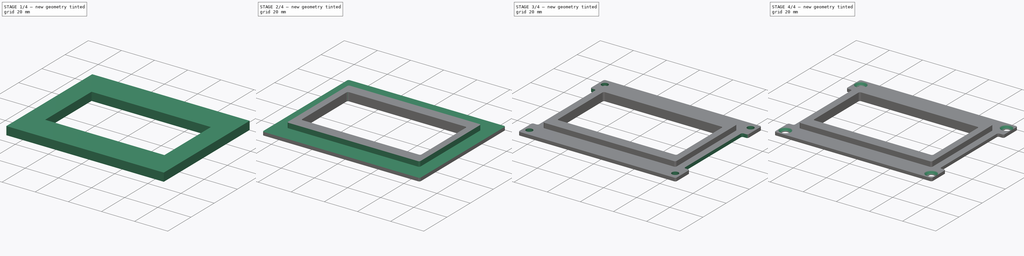
[diagram: build sequence overview — one tinted view per stage of 4, left to right]
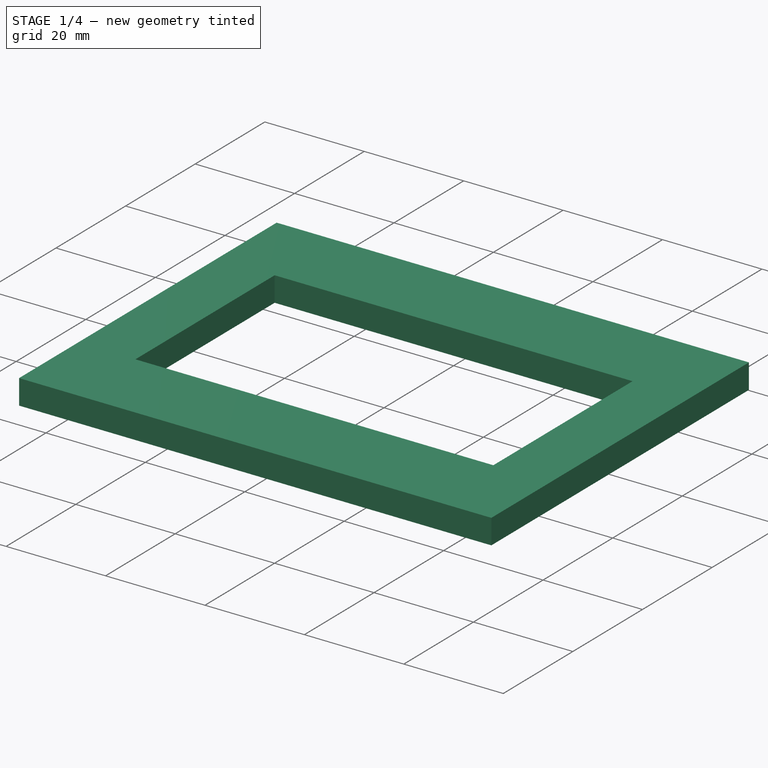
[diagram: stage 1 of 4 — iso view after this stage's code; geometry added in this stage tinted green]
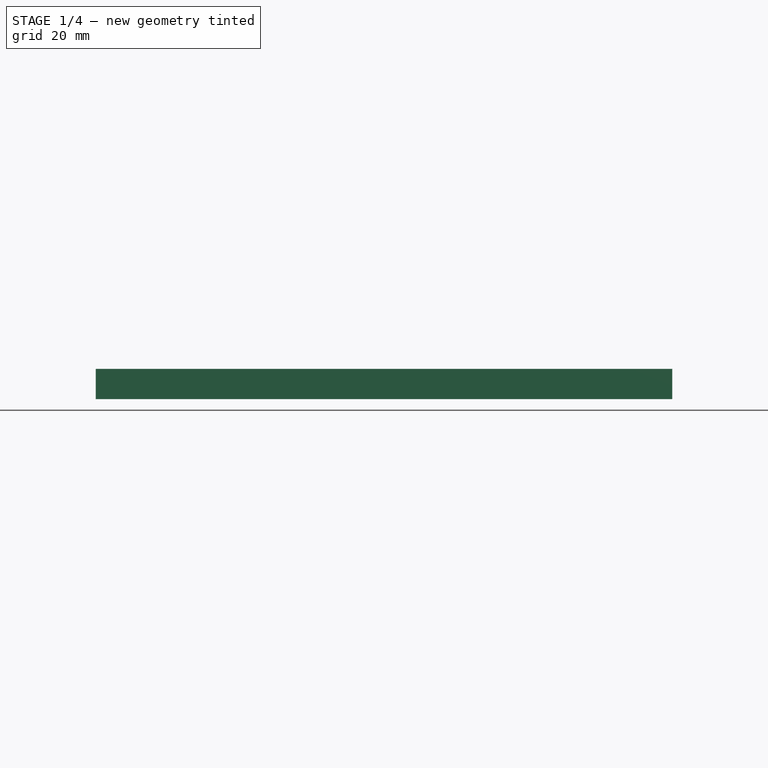
[diagram: stage 1 of 4 — front view after this stage's code; geometry added in this stage tinted green]
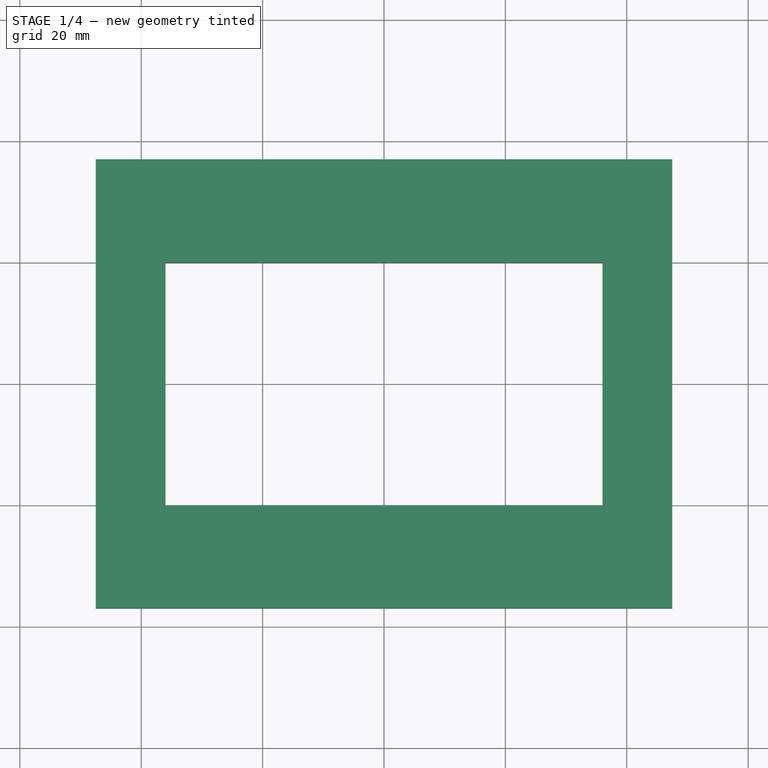
[diagram: stage 1 of 4 — top view after this stage's code; geometry added in this stage tinted green]
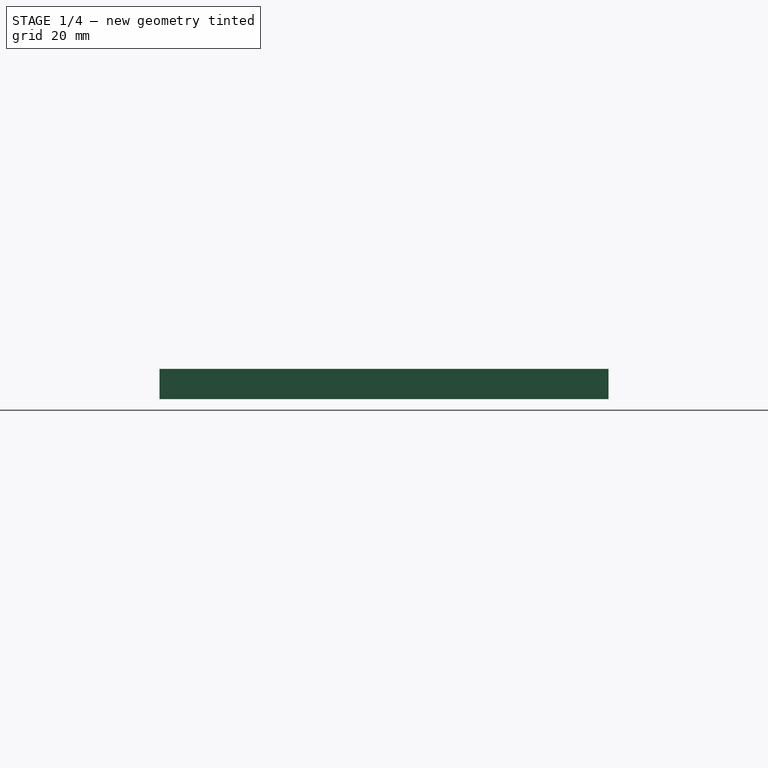
[diagram: stage 1 of 4 — right view after this stage's code; geometry added in this stage tinted green]
FCSTD DOCUMENT  (FreeCAD 0.17R13662 (Git))
Label: mini_lcd_bezel_v0.1
License: All rights reserved
LicenseURL: http://en.wikipedia.org/wiki/All_rights_reserved
objects: Drawing::FeatureViewPython×7, Sketcher::SketchObject×5, PartDesign::Pocket×5, PartDesign::Fillet×3, PartDesign::Pad×1, PartDesign::Chamfer×1, PartDesign::Body×1, Drawing::FeatureViewPart×1, Drawing::FeaturePage×1, App::Part×1
note: 22 computed .brp shape members not serialized (recipe doc carries the construction recipe); baked Part::Feature solids carry a one-line shape summary decoded from their .brp

FEATURE [Sketcher::SketchObject] Sketch
  MapMode = 5
  Support = -> [XY_Plane001]
  sketch-geometry (4):
    g0: LineSegment StartX=-47.5 StartY=37 StartZ=0 EndX=47.5 EndY=37 EndZ=0
    g1: LineSegment StartX=47.5 StartY=37 StartZ=0 EndX=47.5 EndY=-37 EndZ=0
    g2: LineSegment StartX=47.5 StartY=-37 StartZ=0 EndX=-47.5 EndY=-37 EndZ=0
    g3: LineSegment StartX=-47.5 StartY=-37 StartZ=0 EndX=-47.5 EndY=37 EndZ=0
  constraints (12):
    c: Coincident(g0,g1)
    c: Coincident(g1,g2)
    c: Coincident(g2,g3)
    c: Coincident(g3,g0)
    c: Horizontal(g0)
    c: Horizontal(g2)
    c: Vertical(g1)
    c: Vertical(g3)
    c: Distance(g0) = 95
    c: Distance(g1) = 74
    c: DistanceY(g-1,g1) = -37
    c: DistanceX(g-1,g0) = 47.5
FEATURE [PartDesign::Pad] Pad
  Length = 5
  Length2 = 100
  Profile = -> Sketch
  Type = 0
FEATURE [Sketcher::SketchObject] Sketch002
  MapMode = 5
  Placement = pos=(0,0,5) rot=(0,0,1;0rad)
  Support = -> [Pad]
  sketch-geometry (4):
    g0: LineSegment StartX=-36 StartY=20 StartZ=0 EndX=36 EndY=20 EndZ=0
    g1: LineSegment StartX=36 StartY=20 StartZ=0 EndX=36 EndY=-20 EndZ=0
    g2: LineSegment StartX=36 StartY=-20 StartZ=0 EndX=-36 EndY=-20 EndZ=0
    g3: LineSegment StartX=-36 StartY=-20 StartZ=0 EndX=-36 EndY=20 EndZ=0
  constraints (12):
    c: Coincident(g0,g1)
    c: Coincident(g1,g2)
    c: Coincident(g2,g3)
    c: Coincident(g3,g0)
    c: Horizontal(g0)
    c: Horizontal(g2)
    c: Vertical(g1)
    c: Vertical(g3)
    c: DistanceX(g0) = 72
    c: DistanceY(g1) = -40
    c: DistanceY(g-1,g0) = 20
    c: DistanceX(g-1,g0) = 36
FEATURE [PartDesign::Pocket] Pocket
  BaseFeature = -> Pad
  Length = 5
  Length2 = 100
  Profile = -> Sketch002
  Type = 1
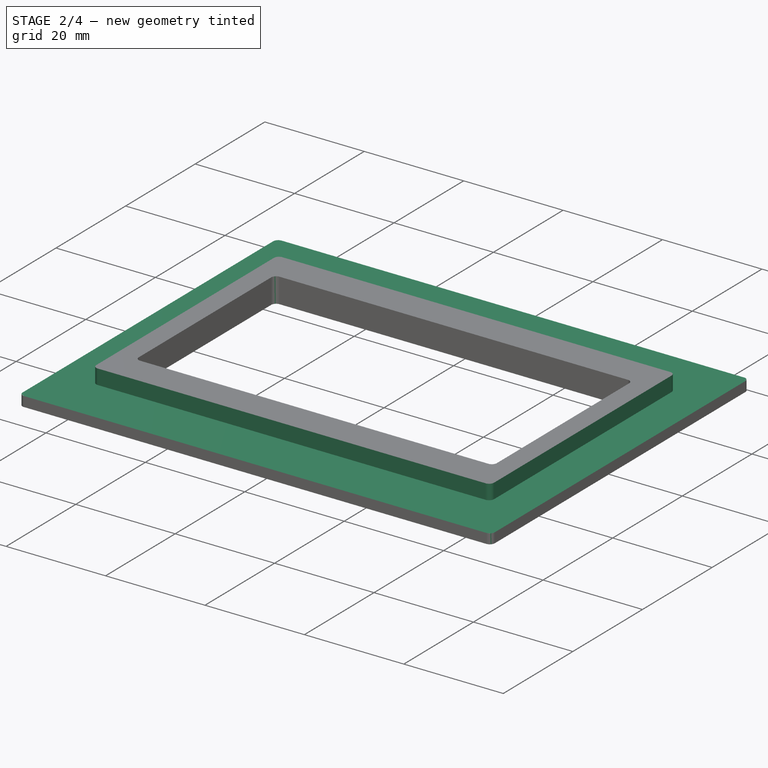
[diagram: stage 2 of 4 — iso view after this stage's code; geometry added in this stage tinted green]
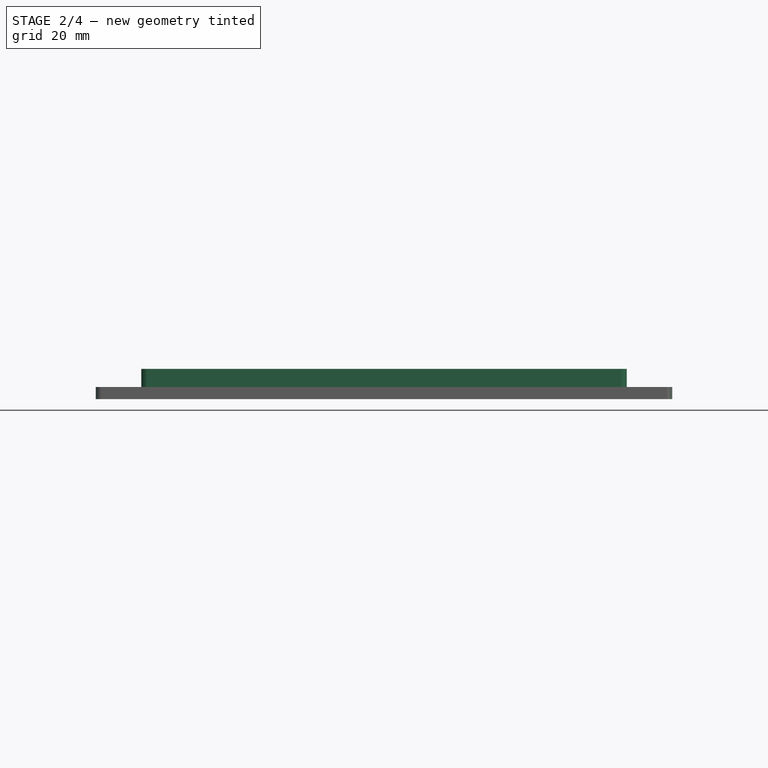
[diagram: stage 2 of 4 — front view after this stage's code; geometry added in this stage tinted green]
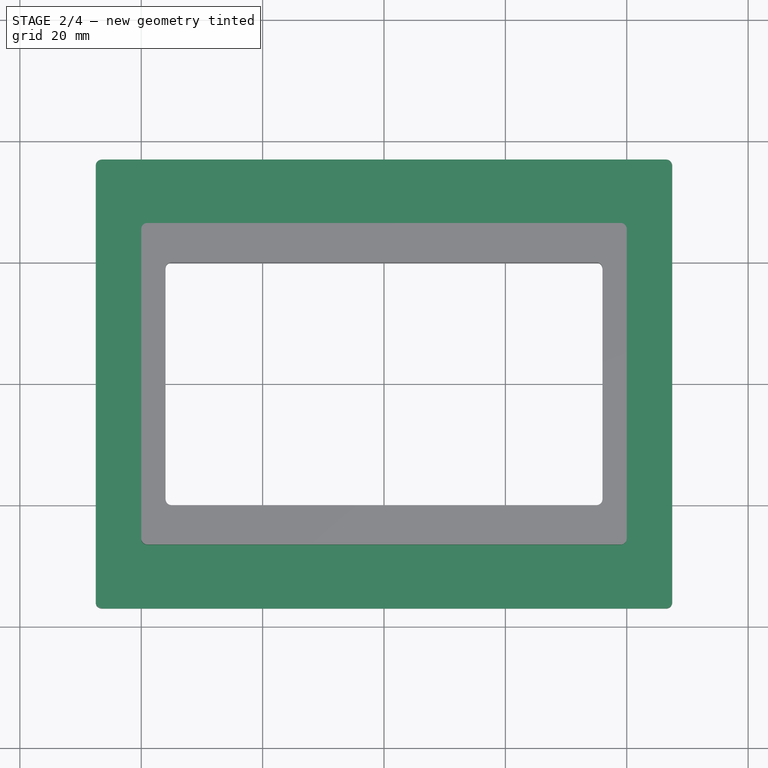
[diagram: stage 2 of 4 — top view after this stage's code; geometry added in this stage tinted green]
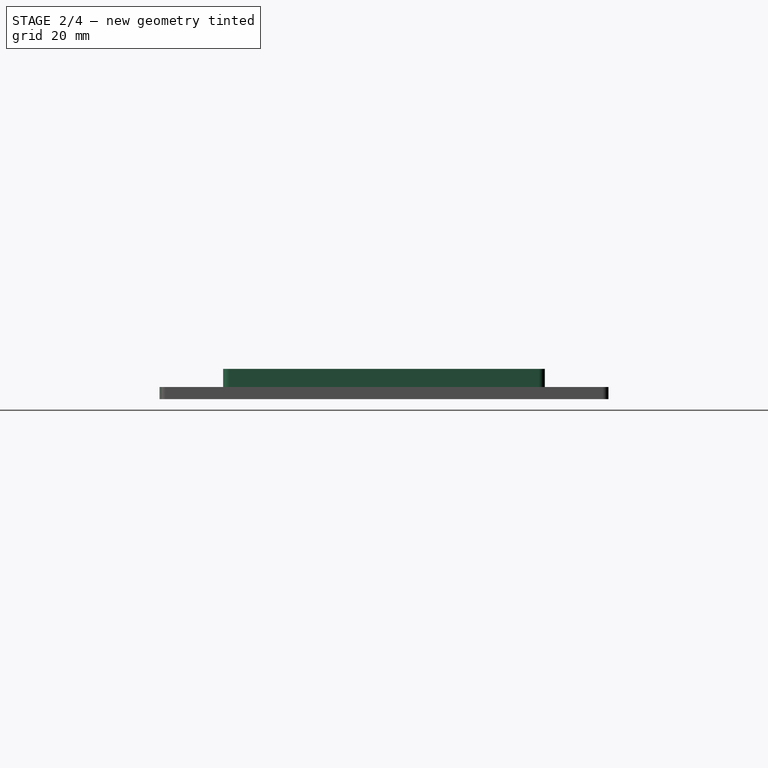
[diagram: stage 2 of 4 — right view after this stage's code; geometry added in this stage tinted green]
FEATURE [Sketcher::SketchObject] Sketch004
  MapMode = 5
  Placement = pos=(0,0,5) rot=(0,0,1;0rad)
  Support = -> [Pocket]
  sketch-geometry (8):
    g0: LineSegment StartX=-40 StartY=26.5 StartZ=0 EndX=40 EndY=26.5 EndZ=0
    g1: LineSegment StartX=40 StartY=26.5 StartZ=0 EndX=40 EndY=-26.5 EndZ=0
    g2: LineSegment StartX=40 StartY=-26.5 StartZ=0 EndX=-40 EndY=-26.5 EndZ=0
    g3: LineSegment StartX=-40 StartY=-26.5 StartZ=0 EndX=-40 EndY=26.5 EndZ=0
    g4: LineSegment StartX=-60.6887 StartY=46.8278 StartZ=0 EndX=56.9732 EndY=46.8278 EndZ=0
    g5: LineSegment StartX=56.9732 StartY=46.8278 StartZ=0 EndX=56.9732 EndY=-45.6053 EndZ=0
    g6: LineSegment StartX=56.9732 StartY=-45.6053 StartZ=0 EndX=-60.6887 EndY=-45.6053 EndZ=0
    g7: LineSegment StartX=-60.6887 StartY=-45.6053 StartZ=0 EndX=-60.6887 EndY=46.8278 EndZ=0
  constraints (20):
    c: Coincident(g0,g1)
    c: Coincident(g1,g2)
    c: Coincident(g2,g3)
    c: Coincident(g3,g0)
    c: Horizontal(g0)
    c: Horizontal(g2)
    c: Vertical(g1)
    c: Vertical(g3)
    c: DistanceX(g0) = 80
    c: DistanceX(g-1,g0) = 40
    c: DistanceY(g1) = -53
    c: DistanceY(g-1,g0) = 26.5
    c: Coincident(g4,g5)
    c: Coincident(g5,g6)
    c: Coincident(g6,g7)
    c: Coincident(g7,g4)
    c: Horizontal(g4)
    c: Horizontal(g6)
    c: Vertical(g5)
    c: Vertical(g7)
FEATURE [PartDesign::Pocket] Pocket001
  BaseFeature = -> Pocket
  Length = 3
  Length2 = 100
  Profile = -> Sketch004
  Type = 0
FEATURE [PartDesign::Fillet] Fillet
  Base = -> Pocket001 [Edge23,Edge22,Edge27,Edge25]
  BaseFeature = -> Pocket001
  Radius = 1
FEATURE [PartDesign::Fillet] Fillet001
  Base = -> Fillet [Edge47,Edge29,Edge34,Edge48,Edge33,Edge45,Edge46,Edge31]
  BaseFeature = -> Fillet
  Radius = 1
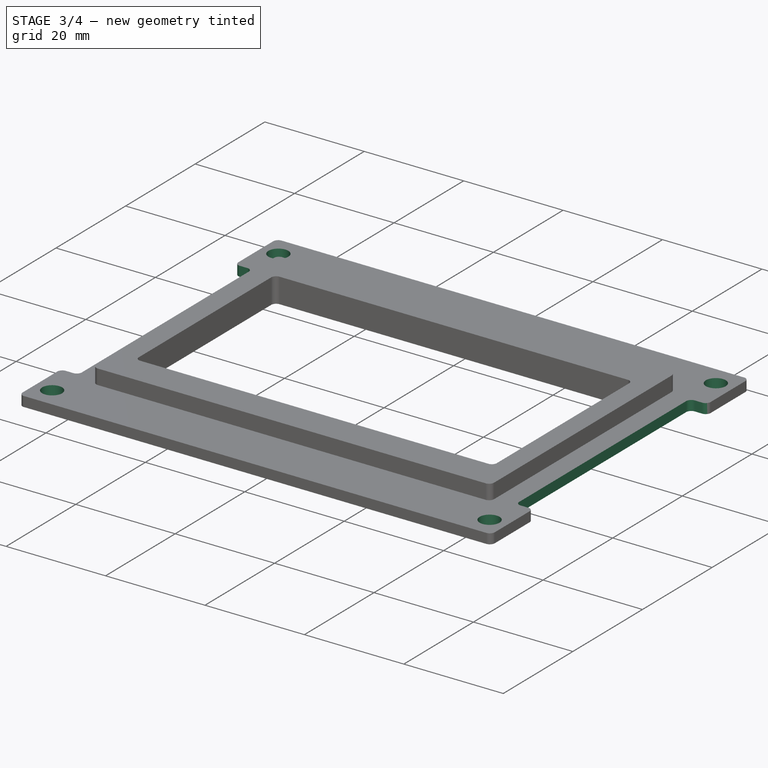
[diagram: stage 3 of 4 — iso view after this stage's code; geometry added in this stage tinted green]
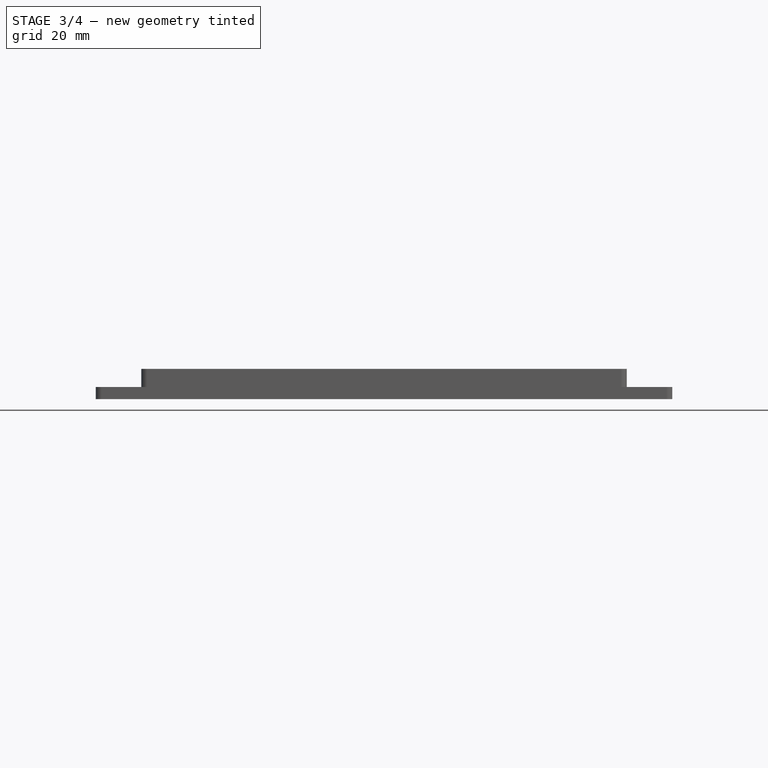
[diagram: stage 3 of 4 — front view after this stage's code; geometry added in this stage tinted green]
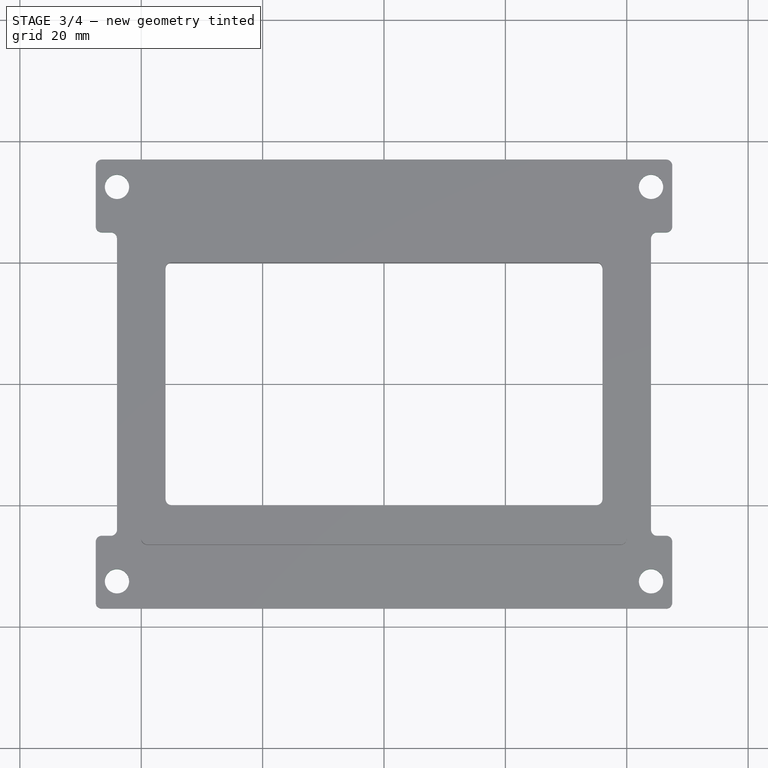
[diagram: stage 3 of 4 — top view after this stage's code; geometry added in this stage tinted green]
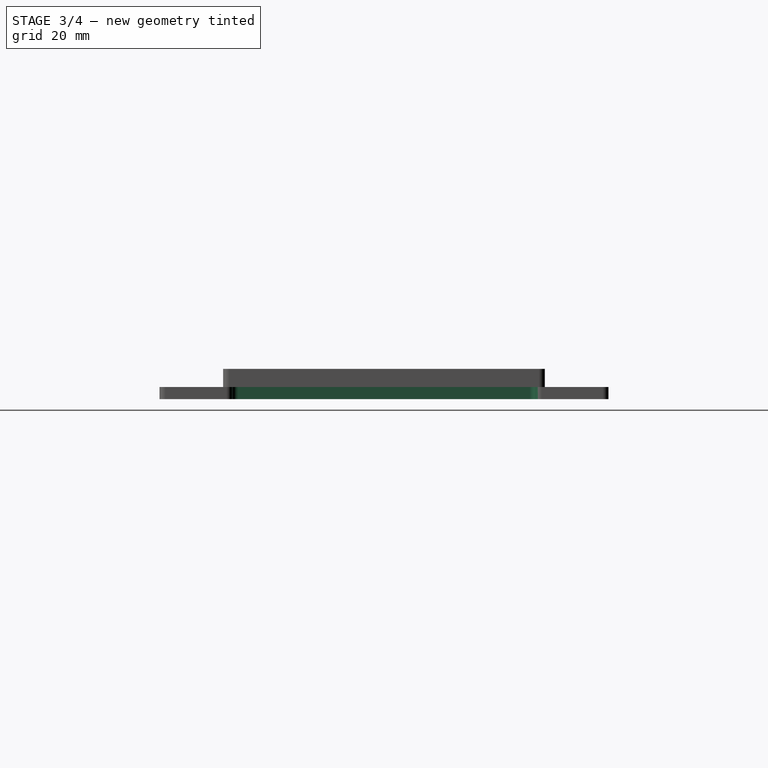
[diagram: stage 3 of 4 — right view after this stage's code; geometry added in this stage tinted green]
FEATURE [Sketcher::SketchObject] Sketch005
  MapMode = 5
  Placement = pos=(0,0,2) rot=(0,0,1;0rad)
  Support = -> [Fillet001]
  sketch-geometry (8):
    g0: LineSegment [constr] StartX=-44 StartY=32.5 StartZ=0 EndX=44 EndY=32.5 EndZ=0
    g1: LineSegment [constr] StartX=44 StartY=32.5 StartZ=0 EndX=44 EndY=-32.5 EndZ=0
    g2: LineSegment [constr] StartX=44 StartY=-32.5 StartZ=0 EndX=-44 EndY=-32.5 EndZ=0
    g3: LineSegment [constr] StartX=-44 StartY=-32.5 StartZ=0 EndX=-44 EndY=32.5 EndZ=0
    g4: Circle CenterX=-44 CenterY=32.5 CenterZ=0 NormalX=0 NormalY=0 NormalZ=1 AngleXU=0 Radius=2
    g5: Circle CenterX=44 CenterY=32.5 CenterZ=0 NormalX=0 NormalY=0 NormalZ=1 AngleXU=0 Radius=2
    g6: Circle CenterX=44 CenterY=-32.5 CenterZ=0 NormalX=0 NormalY=0 NormalZ=1 AngleXU=0 Radius=2
    g7: Circle CenterX=-44 CenterY=-32.5 CenterZ=0 NormalX=0 NormalY=0 NormalZ=1 AngleXU=0 Radius=2
  constraints (20):
    c: Coincident(g0,g1)
    c: Coincident(g1,g2)
    c: Coincident(g2,g3)
    c: Coincident(g3,g0)
    c: Horizontal(g0)
    c: Horizontal(g2)
    c: Vertical(g1)
    c: Vertical(g3)
    c: DistanceX(g0) = 88
    c: DistanceX(g-1,g0) = 44
    c: DistanceY(g1) = -65
    c: DistanceY(g-1,g1) = -32.5
    c: Coincident(g0,g4)
    c: Coincident(g0,g5)
    c: Coincident(g1,g6)
    c: Coincident(g2,g7)
    c: Radius(g7) = 2
    c: Equal(g7,g4)
    c: Equal(g4,g5)
    c: Equal(g5,g6)
FEATURE [PartDesign::Pocket] Pocket002
  BaseFeature = -> Fillet001
  Length = 5
  Length2 = 100
  Profile = -> Sketch005
  Type = 0
FEATURE [Sketcher::SketchObject] Sketch006
  MapMode = 5
  Placement = pos=(0,0,2) rot=(0,0,1;0rad)
  Support = -> [Pocket002]
  sketch-geometry (8):
    g0: LineSegment StartX=44 StartY=25 StartZ=0 EndX=49.4779 EndY=25 EndZ=0
    g1: LineSegment StartX=49.4779 StartY=25 StartZ=0 EndX=49.4779 EndY=-25 EndZ=0
    g2: LineSegment StartX=49.4779 StartY=-25 StartZ=0 EndX=44 EndY=-25 EndZ=0
    g3: LineSegment StartX=44 StartY=-25 StartZ=0 EndX=44 EndY=25 EndZ=0
    g4: LineSegment StartX=-49.9315 StartY=25 StartZ=0 EndX=-44 EndY=25 EndZ=0
    g5: LineSegment StartX=-44 StartY=25 StartZ=0 EndX=-44 EndY=-25 EndZ=0
    g6: LineSegment StartX=-44 StartY=-25 StartZ=0 EndX=-49.9315 EndY=-25 EndZ=0
    g7: LineSegment StartX=-49.9315 StartY=-25 StartZ=0 EndX=-49.9315 EndY=25 EndZ=0
  constraints (22):
    c: Coincident(g0,g1)
    c: Coincident(g1,g2)
    c: Coincident(g2,g3)
    c: Coincident(g3,g0)
    c: Horizontal(g0)
    c: Horizontal(g2)
    c: Vertical(g1)
    c: Vertical(g3)
    c: Coincident(g4,g5)
    c: Coincident(g5,g6)
    c: Coincident(g6,g7)
    c: Coincident(g7,g4)
    c: Horizontal(g4)
    c: Horizontal(g6)
    c: Vertical(g5)
    c: Vertical(g7)
    c: DistanceX(g-1,g0) = 44
    c: DistanceY(g-1,g0) = 25
    c: DistanceY(g1) = -50
    c: Equal(g3,g5)
    c: DistanceY(g-1,g4) = 25
    c: DistanceX(g-1,g4) = -44
FEATURE [PartDesign::Pocket] Pocket003
  BaseFeature = -> Pocket002
  Length = 5
  Length2 = 100
  Profile = -> Sketch006
  Type = 0
FEATURE [PartDesign::Fillet] Fillet002
  Base = -> Pocket003 [Edge57,Edge55,Edge53,Edge39,Edge37,Edge35,Edge51,Edge33,Edge49]
  BaseFeature = -> Pocket003
  Radius = 1
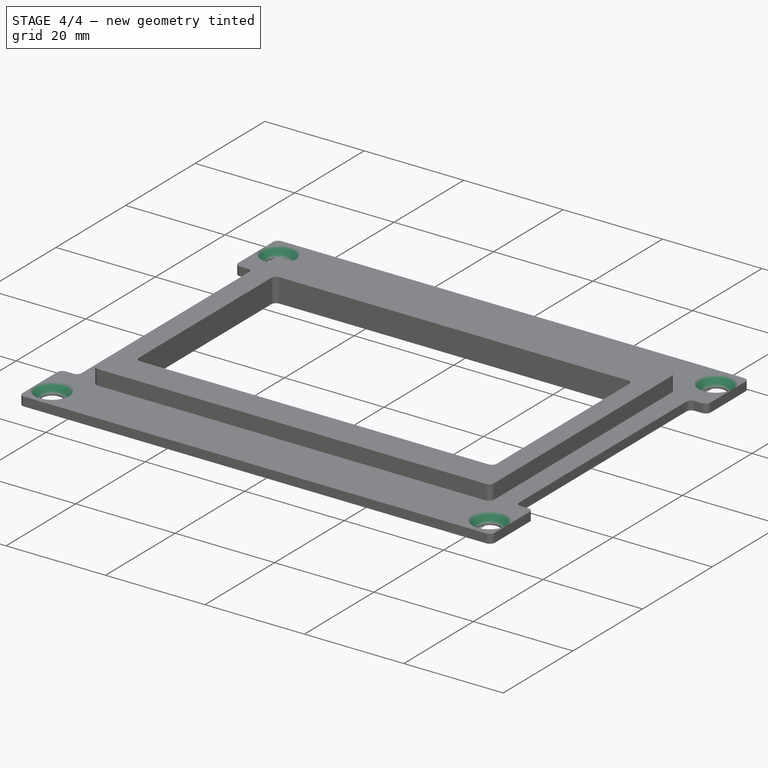
[diagram: stage 4 of 4 — iso view after this stage's code; geometry added in this stage tinted green]
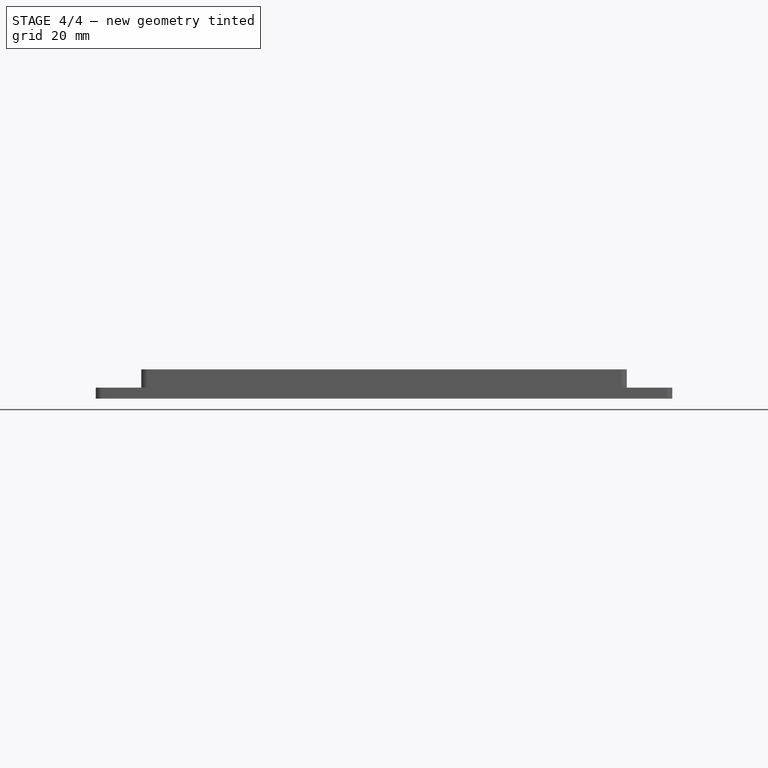
[diagram: stage 4 of 4 — front view after this stage's code; geometry added in this stage tinted green]
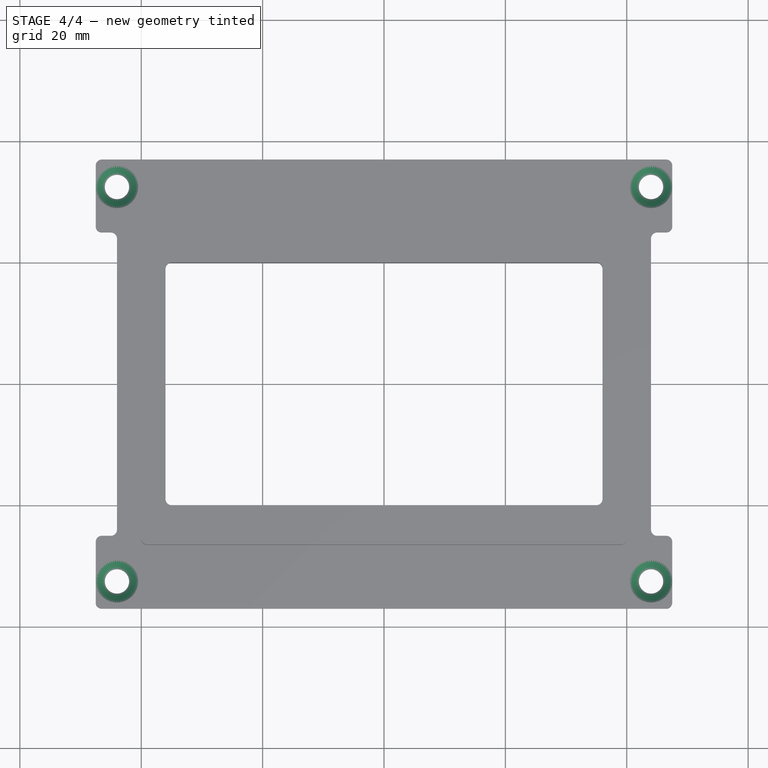
[diagram: stage 4 of 4 — top view after this stage's code; geometry added in this stage tinted green]
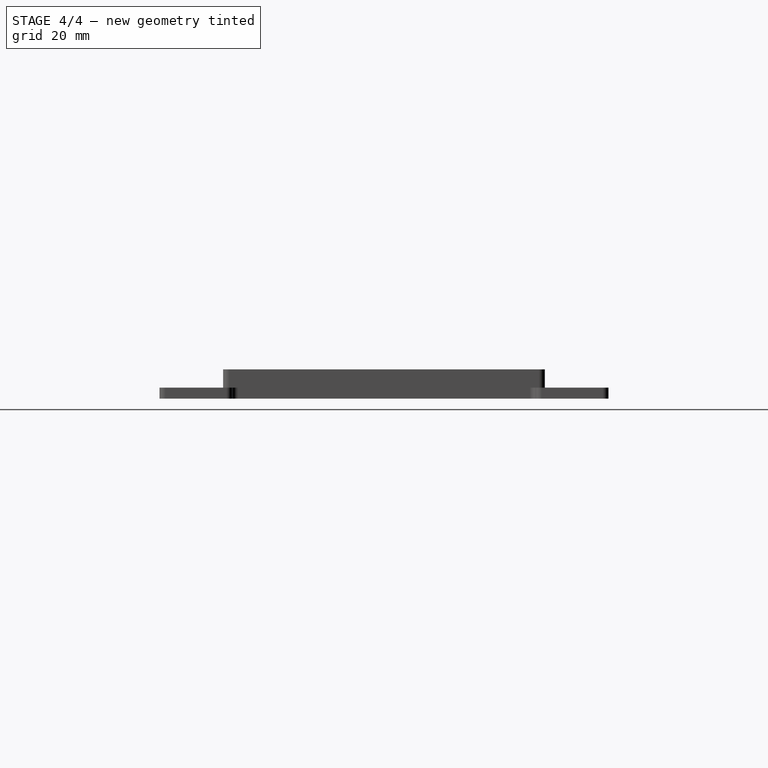
[diagram: stage 4 of 4 — right view after this stage's code; geometry added in this stage tinted green]
FEATURE [Drawing::FeatureViewPython] grabPoint001  # drawing view (typed FeaturePython)
  Rotation = 0
  ViewResult = <g> <line x1="152.714841876" y1="164.313437462" x2="152.714841876" y2="164.313437462" style="stroke:rgb(0,0,0);stroke-width:0.01" /> </g> 
  Visible = false
  X = 0
  Y = 0
  click1_x = 152.715
  click1_y = 164.313
FEATURE [Drawing::FeatureViewPython] text002  # drawing view (typed FeaturePython)
  Rotation = 0
  ViewResult = <g> <text x="94.343000" y="133.124313" font-family="inherit" font-size="8" fill="rgb(0,0,0)" text-anchor="inherit" transform="rotate(0.000000 94.343000,133.124313)" >'D'</text> </g>
  Visible = false
  X = 0
  Y = 0
  click1_x = 94.343
  click1_y = 133.124
  rotation = 0
  text = 'D'
  textRenderer_addText_color = rgb(0,0,0)
  textRenderer_addText_family = inherit
  textRenderer_addText_size = 8
FEATURE [Drawing::FeatureViewPython] grabPoint002  # drawing view (typed FeaturePython)
  Rotation = 0
  ViewResult = <g> <line x1="155.87104407" y1="183.465439431" x2="155.87104407" y2="183.465439431" style="stroke:rgb(0,0,0);stroke-width:0.01" /> </g> 
  Visible = false
  X = 0
  Y = 0
  click1_x = 155.871
  click1_y = 183.465
FEATURE [Drawing::FeatureViewPython] weld001  # drawing view (typed FeaturePython)
  Rotation = 0
  ViewResult = <g   >\n<line x1="110.004684" y1="134.988799" x2="155.871044" y2="183.465439" style="stroke:rgb(0,0,255);stroke-width:0.50" />\n<polygon points="155.871044,183.465439 154.535598,180.598981 153.121926,180.559867 153.082812,181.973540" style="fill:rgb(0,0,255);stroke:rgb(0,0,255);stroke-width:0" />\n<line x1="110.004684" y1="134.988799" x2="86.885056" y2="134.988799" style="stroke:rgb(0,0,255);stroke-width:0.50" />\n</g> 
  Visible = false
  X = 0
  Y = 0
  arrowL1 = 3
  arrowL2 = 1
  arrowW = 2
  click1_x = 110.005
  click1_y = 134.989
  click2_x = 86.8851
  click2_y = 135.362
  lineColor = rgb(0,0,255)
  strokeWidth = 0.5
  textRenderer_color = rgb(0,0,255)
  textRenderer_family = inherit
  textRenderer_size = 3.6
FEATURE [Drawing::FeatureViewPython] grabPoint003  # drawing view (typed FeaturePython)
  Rotation = 0
  ViewResult = <g> <line x1="134.396705344" y1="132.222001374" x2="134.396705344" y2="132.222001374" style="stroke:rgb(0,0,0);stroke-width:0.01" /> </g> 
  Visible = false
  X = 0
  Y = 0
  click1_x = 134.397
  click1_y = 132.222
FEATURE [Drawing::FeatureViewPython] weld002  # drawing view (typed FeaturePython)
  Rotation = 0
  ViewResult = <g   >\n<line x1="112.173072" y1="106.907480" x2="134.396705" y2="132.222001" style="stroke:rgb(0,0,255);stroke-width:0.50" />\n<polygon points="134.396705,132.222001 133.168986,129.307777 131.757752,129.216020 131.665995,130.627253" style="fill:rgb(0,0,255);stroke:rgb(0,0,255);stroke-width:0" />\n<line x1="112.173072" y1="106.907480" x2="82.653843" y2="106.907480" style="stroke:rgb(0,0,255);stroke-width:0.50" />\n</g> 
  Visible = false
  X = 0
  Y = 0
  arrowL1 = 3
  arrowL2 = 1
  arrowW = 2
  click1_x = 112.173
  click1_y = 106.907
  click2_x = 82.6538
  click2_y = 105.95
  lineColor = rgb(0,0,255)
  strokeWidth = 0.5
  textRenderer_color = rgb(0,0,255)
  textRenderer_family = inherit
  textRenderer_size = 3.6
FEATURE [Drawing::FeatureViewPython] text001  # drawing view (typed FeaturePython)
  Rotation = 0
  ViewResult = <g> <text x="93.982844" y="103.237522" font-family="inherit" font-size="8" fill="rgb(0,0,0)" text-anchor="inherit" transform="rotate(0.000000 93.982844,103.237522)" >'A'</text> </g>
  Visible = false
  X = 0
  Y = 0
  click1_x = 93.9828
  click1_y = 103.238
  rotation = 0
  text = 'A'
  textRenderer_addText_color = rgb(0,0,0)
  textRenderer_addText_family = inherit
  textRenderer_addText_size = 8
FEATURE [PartDesign::Chamfer] Chamfer
  Base = -> Fillet002 [Edge101,Edge85,Edge87,Edge89,Edge107]
  BaseFeature = -> Fillet002
  Size = 1.5
FEATURE [PartDesign::Pocket] Pocket004
  BaseFeature = -> Chamfer
  Length = 0.2
  Length2 = 100
  Profile = -> Chamfer [Face3]
  Type = 0
FEATURE [PartDesign::Body] Fillet002Body
  Group = -> [Sketch,Pad,Sketch002,Pocket,Sketch004,Pocket001,Fillet,Fillet001,Sketch005,Pocket002,Sketch006,Pocket003,Fillet002,Chamfer,Pocket004]
  Origin = -> Origin001
  Tip = -> Pocket004
FEATURE [Drawing::FeatureViewPart] Ortho  label="Ortho_0_0"
  Direction = (0,0,1)
  HiddenWidth = 0.15
  LineWidth = 0.35
  Rotation = 0
  Scale = 2
  ShowHiddenLines = false
  ShowSmoothLines = false
  Source = -> Fillet002Body
  Tolerance = 0.05
  ViewResult = <blob: 2577 chars omitted>
  Visible = false
  X = 210
  Y = 118.5
FEATURE [Drawing::FeaturePage] Page  label="Cosmetic"
  EditableTexts = AUTHOR NAME | CREATION DATE | SUPERVISOR NAME | CHECK DATE | SCALE | WEIGHT | NUMBER | SHEET | TITLE | SUBTITLE
  Group = -> [Ortho,grabPoint001,text002,grabPoint002,weld001,grabPoint003,weld002,text001]
  Template = <path>
FEATURE [App::Part] Part
  Group = -> [Fillet002Body]
  License = CC BY 3.0
  LicenseURL = http://creativecommons.org/licenses/by/3.0/
  Origin = -> Origin
note: 1 file-system path scrubbed to <path> (originals preserved in the JSON sidecar)
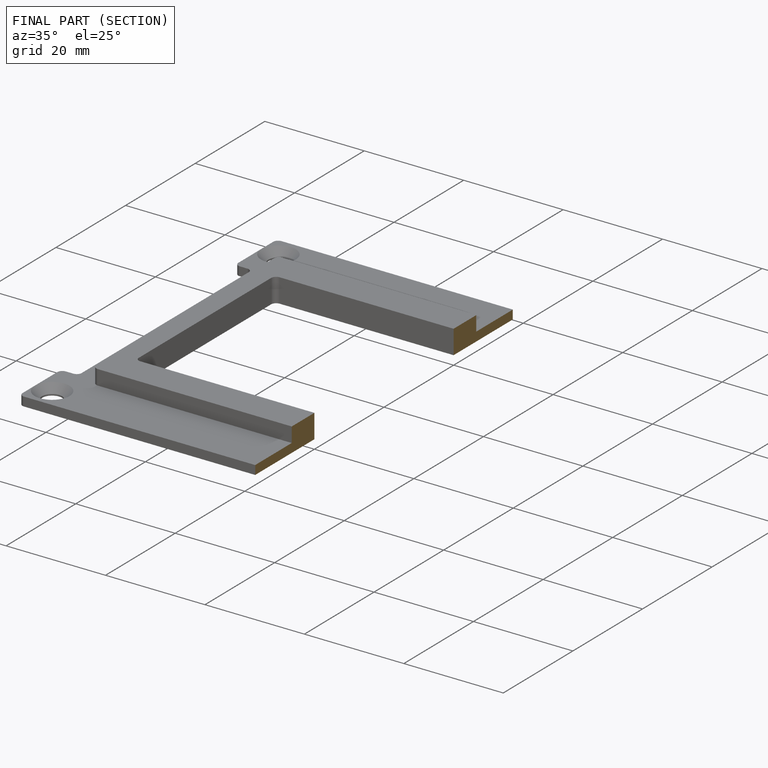
[diagram: finished part — half-section view (interior)]
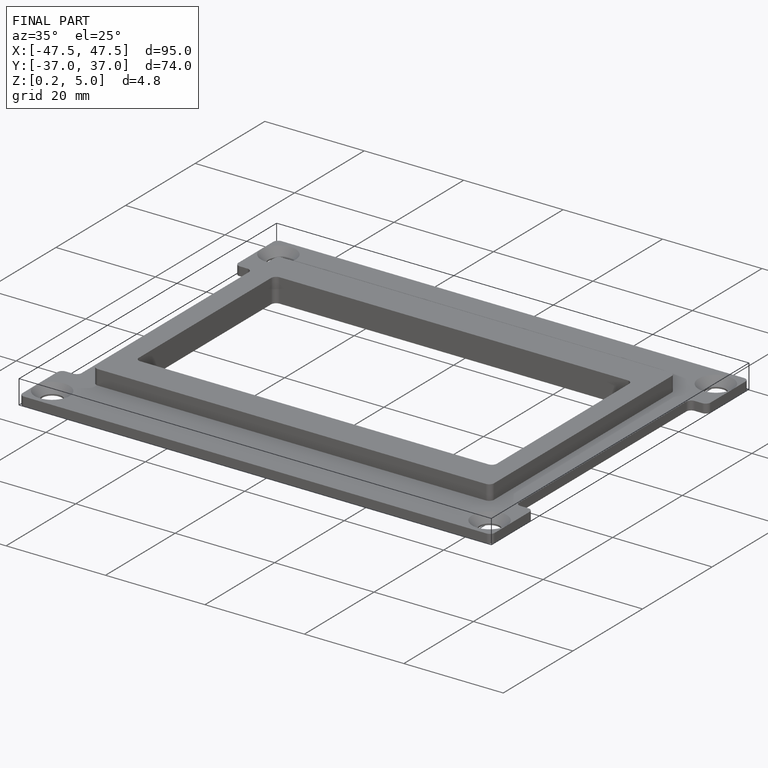
[diagram: finished part — iso view with bounding-box wireframe]
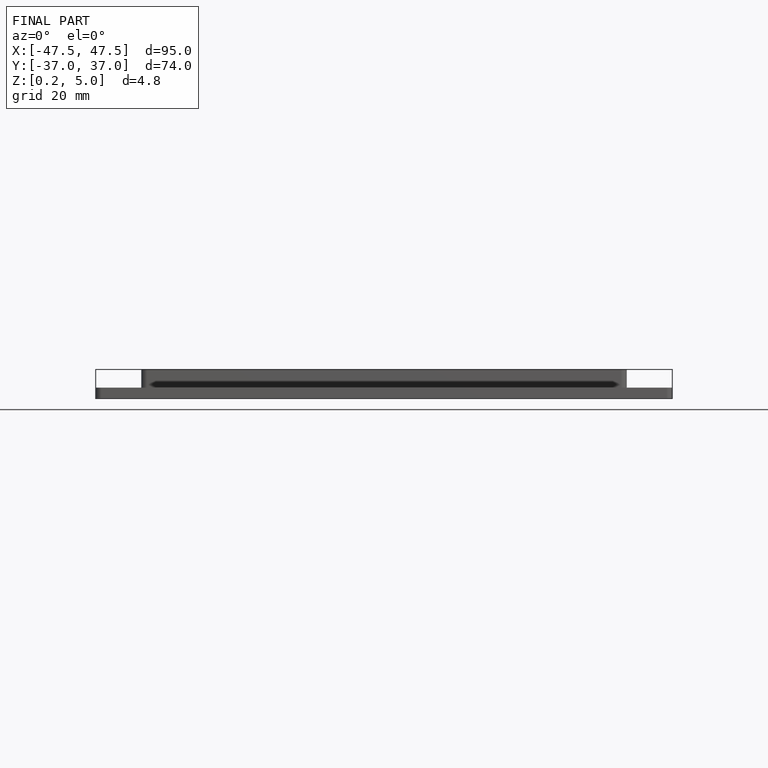
[diagram: finished part — front view with bounding-box wireframe]
